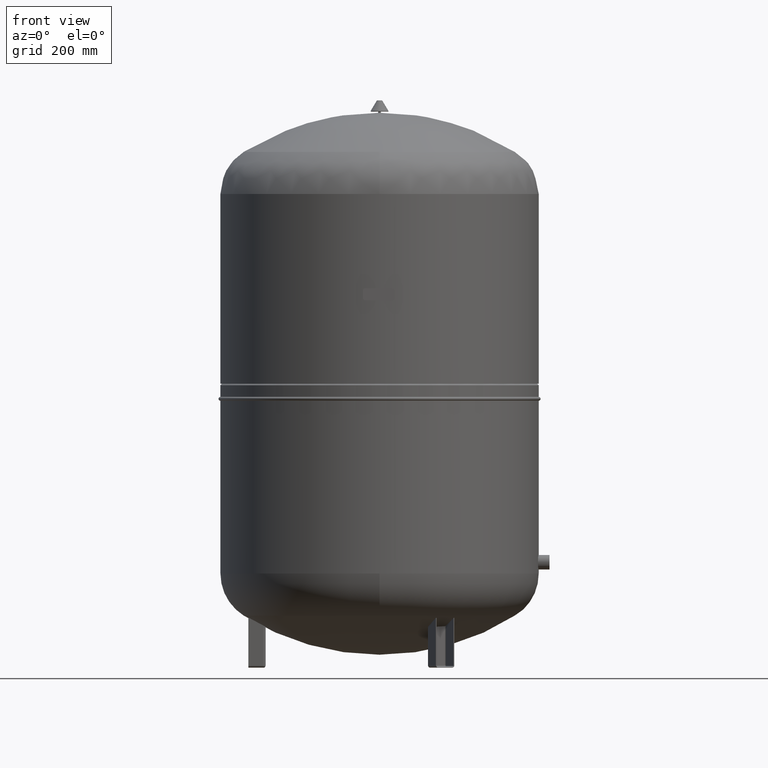
[diagram: clean part render]
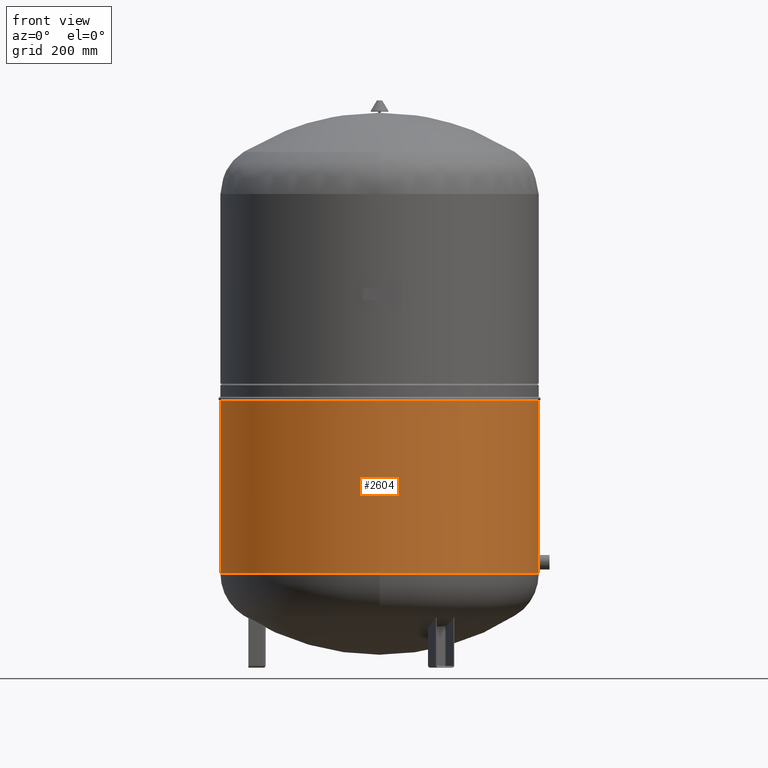
[diagram: same view with one face highlighted and labeled with its STEP entity id]
A machine part, front view. The second image highlights one B-rep face of the part: STEP entity #2604.
In plain terms, the highlighted cylindrical surface (partial cylindrical patch) has radius 370 mm, axis along (0, 0, 1).
Its self-contained STEP definition (entity closure, byte-faithful):
#2544=CARTESIAN_POINT('',(369.999999999999720,0.0,620.600000000000020));
#2545=VERTEX_POINT('',#2544);
#2554=CARTESIAN_POINT('',(-369.999999999999890,-4.531044E-014,620.600000000000020));
#2555=VERTEX_POINT('',#2554);
#2563=CARTESIAN_POINT('',(-1.490943E-015,0.0,620.600000000000020));
#2564=DIRECTION('',(0.0,0.0,1.0));
#2565=DIRECTION('',(1.0,0.0,0.0));
#2566=AXIS2_PLACEMENT_3D('',#2563,#2564,#2565);
#2567=CIRCLE('',#2566,369.999999999999720);
#2568=EDGE_CURVE('',#2555,#2545,#2567,.T.);
#2573=CARTESIAN_POINT('',(-9.089454E-015,0.0,419.799999999999950));
#2574=DIRECTION('',(3.784119E-017,0.0,1.0));
#2575=DIRECTION('',(1.0,0.0,0.0));
#2576=AXIS2_PLACEMENT_3D('',#2573,#2574,#2575);
#2577=CYLINDRICAL_SURFACE('',#2576,369.999999999999890);
#2578=CARTESIAN_POINT('',(369.999999999999940,0.0,218.999999999999890));
#2579=VERTEX_POINT('',#2578);
#2580=CARTESIAN_POINT('',(369.999999999999720,0.0,620.600000000000020));
#2581=DIRECTION('',(0.0,0.0,-1.0));
#2582=VECTOR('',#2581,401.600000000000140);
#2583=LINE('',#2580,#2582);
#2584=EDGE_CURVE('',#2545,#2579,#2583,.T.);
#2585=ORIENTED_EDGE('',*,*,#2584,.F.);
#2586=ORIENTED_EDGE('',*,*,#2568,.F.);
#2587=CARTESIAN_POINT('',(-369.999999999999890,-4.531044E-014,218.999999999999860));
#2588=VERTEX_POINT('',#2587);
#2589=CARTESIAN_POINT('',(-369.999999999999890,-4.531044E-014,620.600000000000020));
#2590=DIRECTION('',(0.0,0.0,-1.0));
#2591=VECTOR('',#2590,401.600000000000140);
#2592=LINE('',#2589,#2591);
#2593=EDGE_CURVE('',#2555,#2588,#2592,.T.);
#2594=ORIENTED_EDGE('',*,*,#2593,.T.);
#2595=CARTESIAN_POINT('',(-1.668796E-014,0.0,218.999999999999830));
#2596=DIRECTION('',(0.0,0.0,1.0));
#2597=DIRECTION('',(1.0,0.0,0.0));
#2598=AXIS2_PLACEMENT_3D('',#2595,#2596,#2597);
#2599=CIRCLE('',#2598,369.999999999999940);
#2600=EDGE_CURVE('',#2588,#2579,#2599,.T.);
#2601=ORIENTED_EDGE('',*,*,#2600,.T.);
#2602=EDGE_LOOP('',(#2585,#2586,#2594,#2601));
#2603=FACE_OUTER_BOUND('',#2602,.T.);
#2604=ADVANCED_FACE('',(#2603),#2577,.T.);